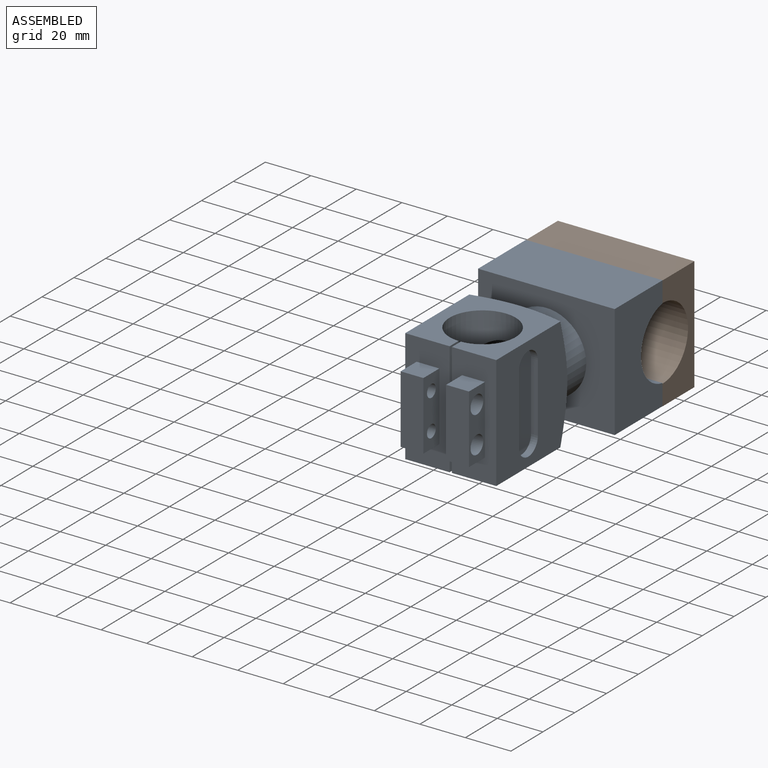
[diagram: assembled view]
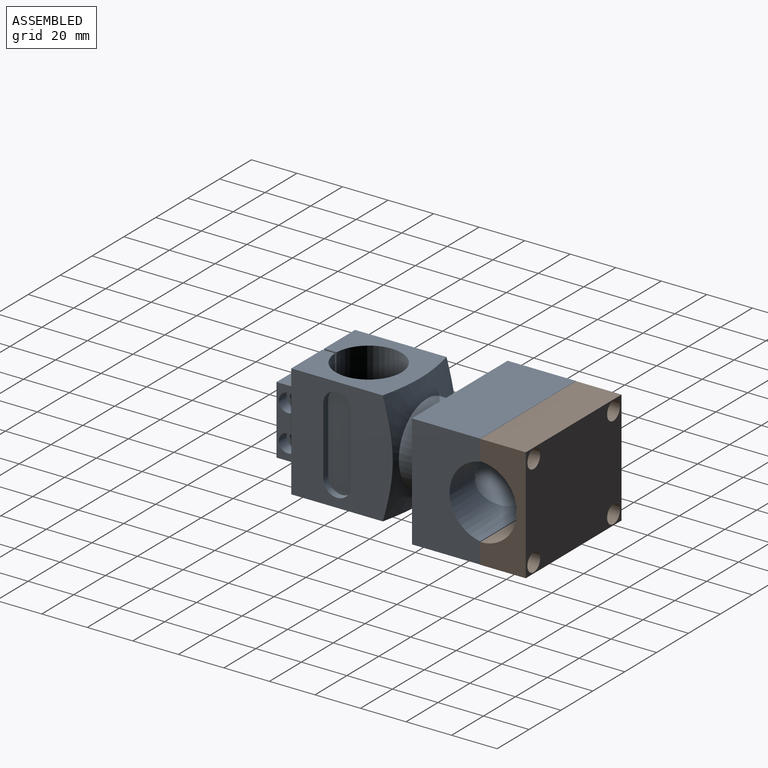
[diagram: assembled view, second angle]
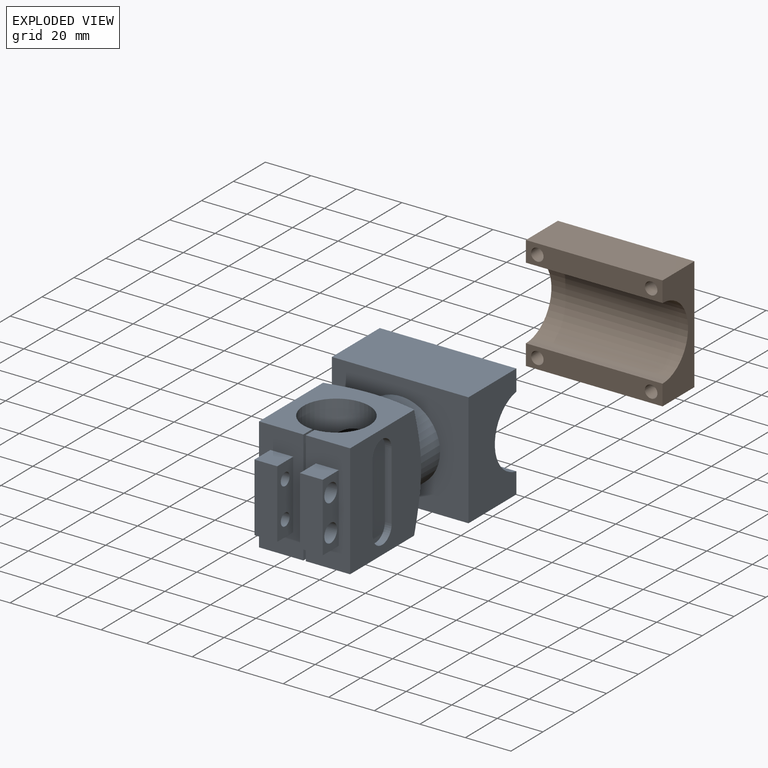
[diagram: exploded view]
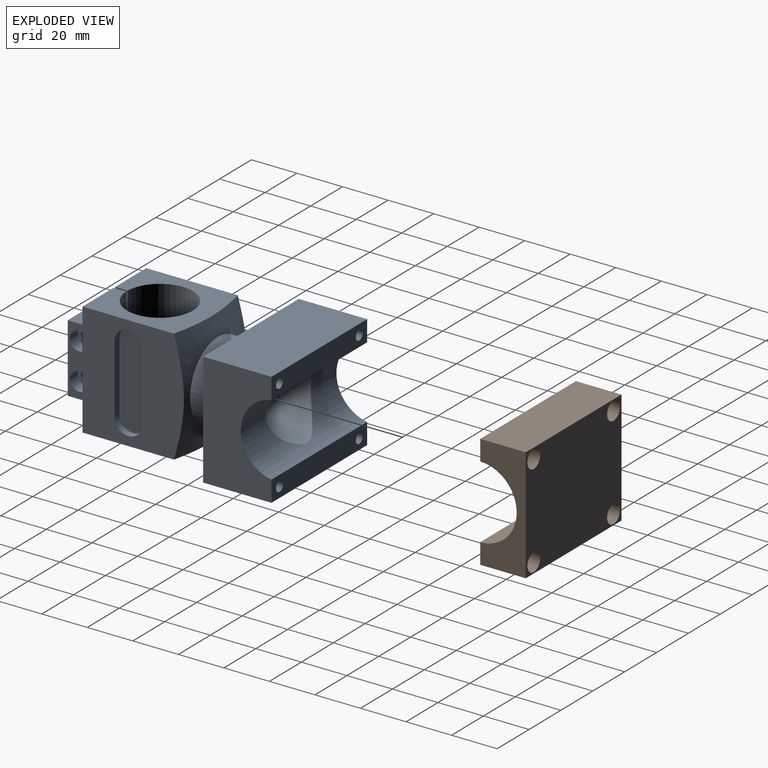
[diagram: exploded view, second angle]
ASSEMBLY  parts=2 mates=2
PART A: 58 faces, bbox 64x100x64 mm
  f0: plane 50x44.55mm, normal (1,0,0), area 1674.5mm2, adj f2,f4,f5,f28,f53,f54,f55,f56
  f1: cylinder r=14.5mm len=50mm, axis (0,0,-1), area 3767.9mm2, adj f4,f5,f8,f9,f45,f46,f47
  f2: plane 50x19.5mm, normal (0,-1,0), area 675mm2, adj f0,f4,f5,f9,f15,f16,f17,f18
  f3: plane 50x19.5mm, normal (0,-1,0), area 675mm2, adj f4,f5,f7,f8,f10,f11,f12,f13
  f4: plane 42.73x40mm, normal (0,0,-1), area 1007.4mm2, adj f0,f1,f2,f3,f7,f8,f9,f28
  f5: plane 42.73x40mm, normal (0,0,1), area 1007.4mm2, adj f0,f1,f2,f3,f7,f8,f9,f28
  f6: cylinder r=17.5mm len=35mm, axis (0,1,0), area 1598.8mm2, adj f28,f29
  f7: plane 50x44.55mm, normal (-1,0,0), area 1670.4mm2, adj f3,f4,f5,f28,f48,f49,f50,f51
  f8: plane 50x5.51mm, normal (1,0,0), area 275.4mm2, adj f1,f3,f4,f5
  f9: plane 50x5.51mm, normal (-1,0,0), area 275.4mm2, adj f1,f2,f4,f5
  f10: plane 30x10mm, normal (-1,0,0), area 252.5mm2, adj f3,f11,f13,f14,f23,f27
  f11: plane 10x10mm, normal (0,0,-1), area 100mm2, adj f3,f10,f12,f14
  f12: plane 30x10mm, normal (1,0,0), area 252.5mm2, adj f3,f11,f13,f14,f23,f27
  f13: plane 10x10mm, normal (0,0,1), area 100mm2, adj f3,f10,f12,f14
  f14: plane 30x10mm, normal (0,-1,0), area 300mm2, adj f10,f11,f12,f13
  f15: plane 30x10mm, normal (-1,0,0), area 252.5mm2, adj f2,f16,f18,f19,f22,f26
  f16: plane 10x10mm, normal (0,0,-1), area 100mm2, adj f2,f15,f17,f19
  f17: plane 30x10mm, normal (1,0,0), area 199.5mm2, adj f2,f16,f18,f19,f20,f24
  f18: plane 10x10mm, normal (0,0,1), area 100mm2, adj f2,f15,f17,f19
  f19: plane 30x10mm, normal (0,-1,0), area 300mm2, adj f15,f16,f17,f18
  f20: cylinder r=4mm len=8mm, axis (1,0,0), area 125.7mm2, adj f17,f21
  f21: plane 8x8mm, normal (1,0,0), area 26.5mm2, adj f20,f22
  f22: cylinder r=2.75mm len=5.5mm, axis (1,0,0), area 86.4mm2, adj f15,f21
  f23: cylinder r=2.75mm len=10mm, axis (1,0,0), area 172.8mm2, adj f10,f12
  f24: cylinder r=4mm len=8mm, axis (1,0,0), area 125.7mm2, adj f17,f25
  f25: plane 8x8mm, normal (1,0,0), area 26.5mm2, adj f24,f26
  f26: cylinder r=2.75mm len=5.5mm, axis (1,0,0), area 86.4mm2, adj f15,f25
  f27: cylinder r=2.75mm len=10mm, axis (1,0,0), area 172.8mm2, adj f10,f12
  f28: cone r=32.5mm half-angle=70deg, axis (0,-1,0), area 1104.5mm2, adj f0,f4,f5,f6,f7
  f29: plane 60x50mm, normal (0,-1,0), area 2037.9mm2, adj f6,f41,f42,f43,f44
  f30: cone r=0mm half-angle=59deg, axis (0,1,0), area 16.2mm2, adj f34
  f31: cone r=0mm half-angle=59deg, axis (0,1,0), area 16.2mm2, adj f35
  f32: cone r=0mm half-angle=59deg, axis (0,1,0), area 16.2mm2, adj f36
  f33: cone r=0mm half-angle=59deg, axis (0,1,0), area 16.2mm2, adj f37
  f34: cylinder r=2.1mm len=14.4mm, axis (0,1,0), area 190mm2, adj f30,f39
  f35: cylinder r=2.1mm len=14.4mm, axis (0,1,0), area 190mm2, adj f31,f39
  f36: cylinder r=2.1mm len=14.4mm, axis (0,1,0), area 190mm2, adj f32,f40
  f37: cylinder r=2.1mm len=14.4mm, axis (0,1,0), area 190mm2, adj f33,f40
  f38: cylinder r=16mm len=60mm, axis (1,0,0), area 2010.4mm2, adj f39,f40,f41,f42,f46
  f39: plane 60x9.2mm, normal (0,1,0), area 524.1mm2, adj f34,f35,f38,f41,f42,f44
  f40: plane 60x9.2mm, normal (0,1,0), area 524.1mm2, adj f36,f37,f38,f41,f42,f43
  f41: plane 50x30mm, normal (1,0,0), area 1177.5mm2, adj f29,f38,f39,f40,f43,f44
  f42: plane 50x30mm, normal (-1,0,0), area 1177.5mm2, adj f29,f38,f39,f40,f43,f44
  f43: plane 60x30mm, normal (0,0,-1), area 1800mm2, adj f29,f40,f41,f42
  f44: plane 60x30mm, normal (0,0,1), area 1800mm2, adj f29,f39,f41,f42
  f45: plane 6.56x0.39mm, normal (0,1,0), area 1.7mm2, adj f1,f46
  f46: cylinder r=14mm len=59.76mm, axis (0,1,0), area 4416.1mm2, adj f1,f38,f45,f47
  f47: plane 6.56x0.39mm, normal (0,1,0), area 1.7mm2, adj f1,f46
  f48: plane 30x3mm, normal (0,-1,0), area 90mm2, adj f7,f49,f51,f52
  f49: cylinder r=6mm len=12mm, axis (-1,0,0), area 60.9mm2, adj f7,f48,f50,f52
  f50: plane 29.69x3mm, normal (0,1,0), area 89.1mm2, adj f7,f49,f51,f52
  f51: cylinder r=6mm len=11.99mm, axis (-1,0,0), area 56mm2, adj f7,f48,f50,f52
  f52: plane 42.48x12.09mm, normal (-1,0,0), area 477.2mm2, adj f48,f49,f50,f51
  f53: plane 30x3mm, normal (0,-1,0), area 90mm2, adj f0,f54,f56,f57
  f54: cylinder r=6mm len=12mm, axis (1,0,0), area 56.5mm2, adj f0,f53,f55,f57
  f55: plane 30x3mm, normal (0,1,0), area 90mm2, adj f0,f54,f56,f57
  f56: cylinder r=6mm len=12mm, axis (1,0,0), area 56.5mm2, adj f0,f53,f55,f57
  f57: plane 42x12mm, normal (1,0,0), area 473.1mm2, adj f53,f54,f55,f56
PART B: 20 faces, bbox 20x60x50 mm
  f0: cylinder r=16mm len=60mm, axis (0,-1,0), area 3015.9mm2, adj f2,f4,f6,f7
  f1: plane 60x20mm, normal (0,0,1), area 1200mm2, adj f2,f4,f5,f7
  f2: plane 50x20mm, normal (0,-1,0), area 597.9mm2, adj f0,f1,f3,f5,f6,f7
  f3: plane 60x20mm, normal (0,0,-1), area 1200mm2, adj f2,f4,f5,f6
  f4: plane 50x20mm, normal (0,1,0), area 597.9mm2, adj f0,f1,f3,f5,f6,f7
  f5: plane 60x50mm, normal (-1,0,0), area 2798.9mm2, adj f1,f2,f3,f4,f10,f13,f16,f19
  f6: plane 60x9mm, normal (1,0,0), area 492.5mm2, adj f0,f2,f3,f4,f14,f17
  f7: plane 60x9mm, normal (1,0,0), area 492.5mm2, adj f0,f1,f2,f4,f8,f11
  f8: cylinder r=2.75mm len=15mm, axis (-1,0,0), area 259.2mm2, adj f7,f9
  f9: plane 8x8mm, normal (-1,0,0), area 26.5mm2, adj f8,f10
  f10: cylinder r=4mm len=8mm, axis (-1,0,0), area 125.7mm2, adj f5,f9
  f11: cylinder r=2.75mm len=15mm, axis (-1,0,0), area 259.2mm2, adj f7,f12
  f12: plane 8x8mm, normal (-1,0,0), area 26.5mm2, adj f11,f13
  f13: cylinder r=4mm len=8mm, axis (-1,0,0), area 125.7mm2, adj f5,f12
  f14: cylinder r=2.75mm len=15mm, axis (-1,0,0), area 259.2mm2, adj f6,f15
  f15: plane 8x8mm, normal (-1,0,0), area 26.5mm2, adj f14,f16
  f16: cylinder r=4mm len=8mm, axis (-1,0,0), area 125.7mm2, adj f5,f15
  f17: cylinder r=2.75mm len=15mm, axis (-1,0,0), area 259.2mm2, adj f6,f18
  f18: plane 8x8mm, normal (-1,0,0), area 26.5mm2, adj f17,f19
  f19: cylinder r=4mm len=8mm, axis (-1,0,0), area 125.7mm2, adj f5,f18
PLACE A t=(-40.99,-132.11,-56.39)mm
PLACE B rot(axis=(0.71,-0.71,0),180deg) t=(19.01,-132.11,-56.47)mm
MATE parallel B.f0 <-> A.f38  axis (1,0,0) through (-10.99,-112.11,-31.47)mm
MATE parallel A.f39 <-> B.f6  axis (0,1,0) through (-10.99,-112.11,-11)mm
